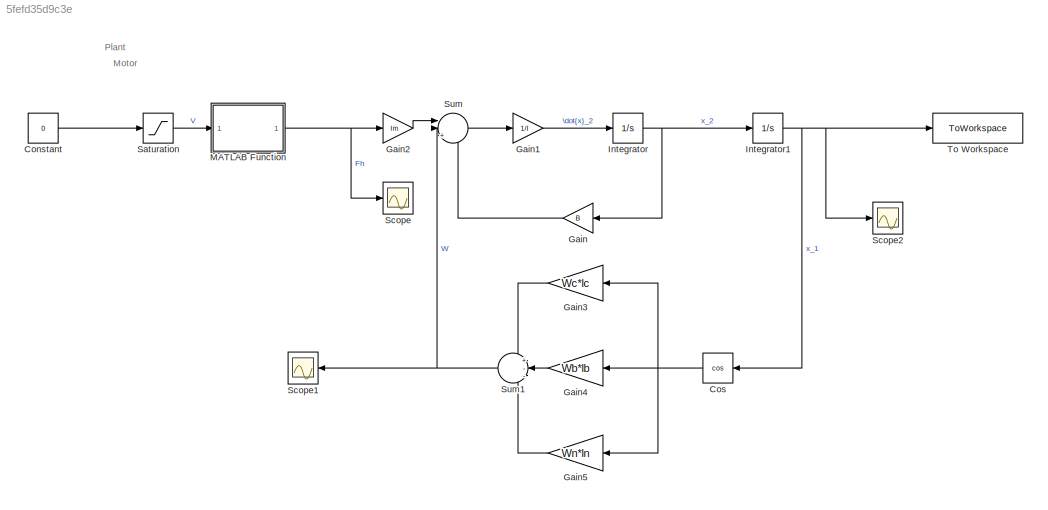
MODEL slx_5fefd35d9c3e
KIND model
CONFIG AbsTol = auto
CONFIG EnableMultiTasking = off
CONFIG FixedStep = auto
CONFIG MaxStep = auto
CONFIG MinStep = auto
CONFIG RelTol = 1e-3
CONFIG SampleTimeConstraint = Unconstrained
CONFIG SolverName = VariableStepAuto
CONFIG StartTime = 0.0
CONFIG StopTime =  20
BLOCK [Constant] Constant
  Value = 0
BLOCK [Trigonometry] Cos
  Operator = cos
  Ports = [1, 1]
BLOCK [Gain] Gain
  Gain = B
BLOCK [Gain] Gain1
  Gain = 1/I
BLOCK [Gain] Gain2
  Gain = lm
BLOCK [Gain] Gain3
  Gain = Wc*lc
BLOCK [Gain] Gain4
  Gain = Wb*lb
BLOCK [Gain] Gain5
  Gain = Wn*ln
BLOCK [Integrator] Integrator
  Ports = [1, 1]
BLOCK [Integrator] Integrator1
  Ports = [1, 1]
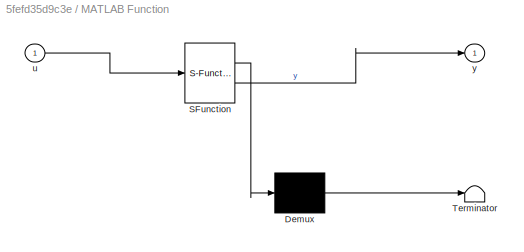
BLOCK [SubSystem] MATLAB Function
  ErrorFcn = Stateflow.Translate.translate
  PermitHierarchicalResolution = ExplicitOnly
  Ports = [1, 1]
  RequestExecContextInheritance = off
  SFBlockType = MATLAB Function
  TreatAsAtomicUnit = on
BLOCK [Demux] MATLAB Function/ Demux 
  Outputs = 1
  Ports = [1, 1]
BLOCK [S-Function] MATLAB Function/ SFunction 
  EnableBusSupport = on
  FunctionName = sf_sfun
  PortCounts = [1 2]
  Ports = [1, 2]
  SFcnIsStateOwnerBlock = off
  SFunctionDeploymentMode = off
  Tag = Stateflow S-Function 2
BLOCK [Terminator] MATLAB Function/ Terminator 
BLOCK [Inport] MATLAB Function/u
BLOCK [Outport] MATLAB Function/y
BLOCK [Saturate] Saturation
  LowerLimit = -6
  UpperLimit = 6
BLOCK [Scope] Scope
  Floating = off
  NumInputPorts = 1
  Ports = [1]
  ScopeSpecificationString = Simulink.scopes.TimeScopeBlockCfg('CurrentConfiguration', extmgr.ConfigurationSet(extmgr.Configuration('Core','General UI',true),extmgr.Configuration('Core','Source UI',true),extmgr.Configuration('Sources','WiredSimulink',true,'DataLoggingVariableName','ScopeData1'),extmgr.Configuration('Visuals','Time Domain',true,'SerializedDisplays',{struct('MinYLimReal','-1.00000','MaxYLimReal','1.00000','YLab...<+1511ch>
BLOCK [Scope] Scope1
  Floating = off
  NumInputPorts = 1
  Ports = [1]
  ScopeSpecificationString = Simulink.scopes.TimeScopeBlockCfg('CurrentConfiguration', extmgr.ConfigurationSet(extmgr.Configuration('Core','General UI',true),extmgr.Configuration('Core','Source UI',true),extmgr.Configuration('Sources','WiredSimulink',true,'DataLoggingVariableName','ScopeData1'),extmgr.Configuration('Visuals','Time Domain',true,'SerializedDisplays',{struct('MinYLimReal','-0.08929','MaxYLimReal','0.08795','YLab...<+1414ch>
BLOCK [Scope] Scope2
  Floating = off
  NumInputPorts = 1
  Ports = [1]
  ScopeSpecificationString = Simulink.scopes.TimeScopeBlockCfg('CurrentConfiguration', extmgr.ConfigurationSet(extmgr.Configuration('Core','General UI',true),extmgr.Configuration('Core','Source UI',true),extmgr.Configuration('Sources','WiredSimulink',true,'DataLoggingVariableName','ScopeData2'),extmgr.Configuration('Visuals','Time Domain',true,'SerializedDisplays',{struct('MinYLimReal','-3.31668','MaxYLimReal','0.36852','YLab...<+1395ch>
BLOCK [Sum] Sum
  Inputs = ||++-
  Ports = [3, 1]
BLOCK [Sum] Sum1
  Inputs = +--
  Ports = [3, 1]
BLOCK [ToWorkspace] To Workspace
  FixptAsFi = on
  MaxDataPoints = inf
  Ports = [1]
  SampleTime = -1
  SaveFormat = Timeseries
  VariableName = simout
ANNOTATION (root): Motor
ANNOTATION (root): Plant
LINE Constant:1 -> Saturation:1
NET Cos:1 -> Gain3:1, Gain4:1, Gain5:1
LINE Gain1:1 -> Integrator:1
LINE Gain2:1 -> Sum:1
LINE Gain3:1 -> Sum1:1
LINE Gain4:1 -> Sum1:2
LINE Gain5:1 -> Sum1:3
LINE Gain:1 -> Sum:3
NET Integrator1:1 -> Cos:1, Scope2:1, To Workspace:1
NET Integrator:1 -> Gain:1, Integrator1:1
NET MATLAB Function:1 -> Gain2:1, Scope:1
LINE Saturation:1 -> MATLAB Function:1
NET Sum1:1 -> Scope1:1, Sum:2
LINE Sum:1 -> Gain1:1
note: NET lines group one-source signal fan-out (src -> all destinations, sorted); 1:1 wires keep LINE
CHART MATLAB Function states=1 transitions=1
  STATE_LABEL 'eML_blk_kernel()'
  STATE_LABEL 'SCRIPT:\nfunction y = lookup(u)\n    dz = 2.369;\n\n    if u < dz\n        y = 0;\n    else\n        y = 0.0647*u-0.114;\n    end\nend\n'
CHART  states=0 transitions=0
